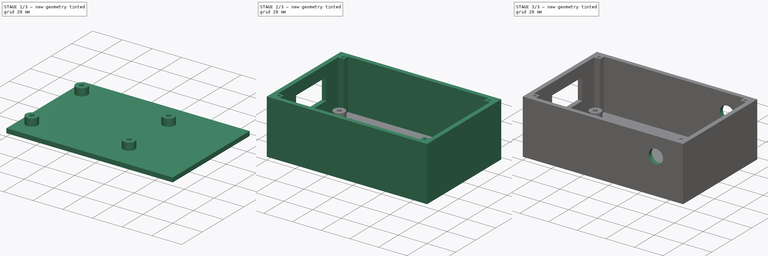
[diagram: build sequence overview — one tinted view per stage of 3, left to right]
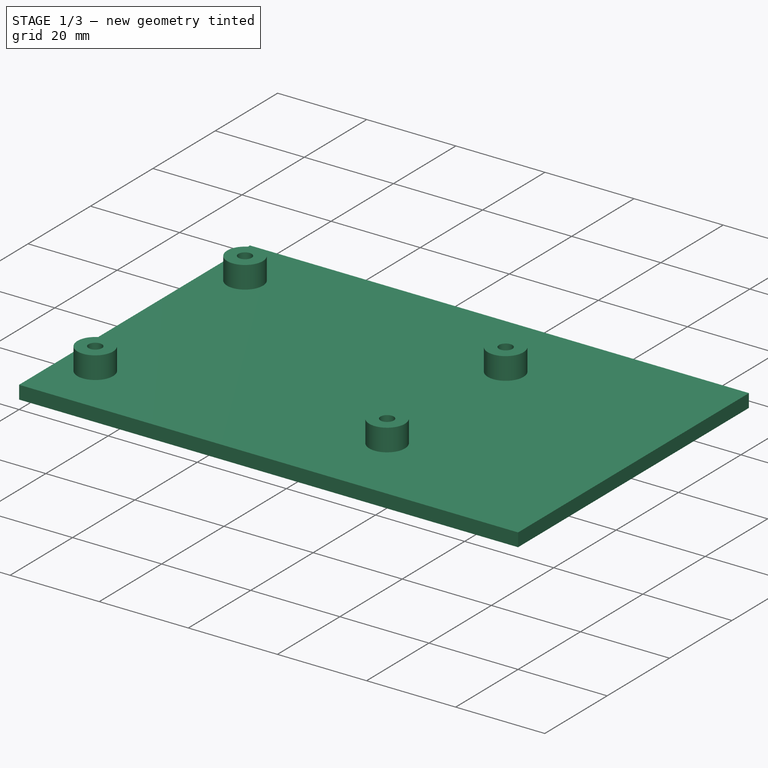
[diagram: stage 1 of 3 — iso view after this stage's code; geometry added in this stage tinted green]
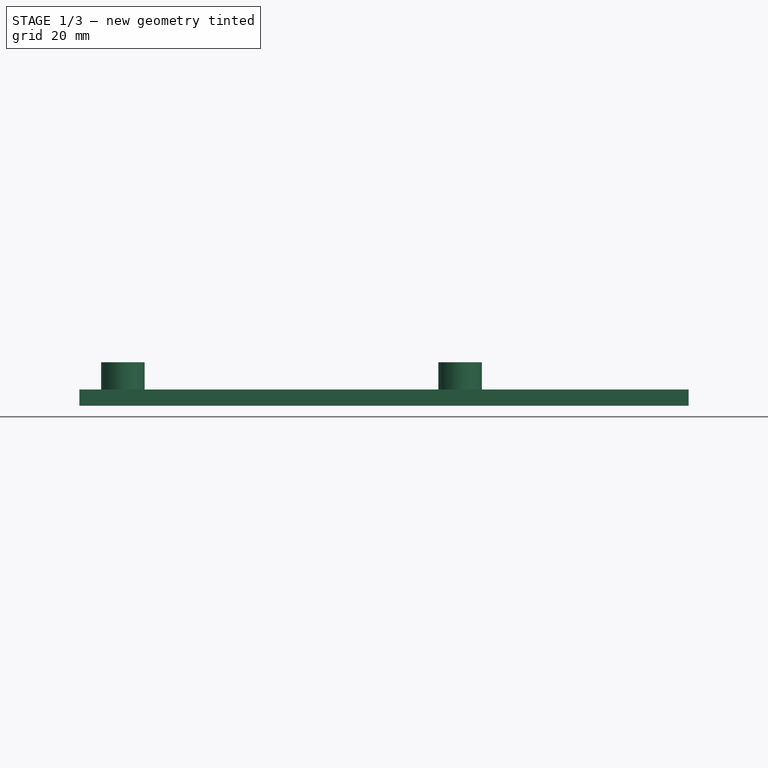
[diagram: stage 1 of 3 — front view after this stage's code; geometry added in this stage tinted green]
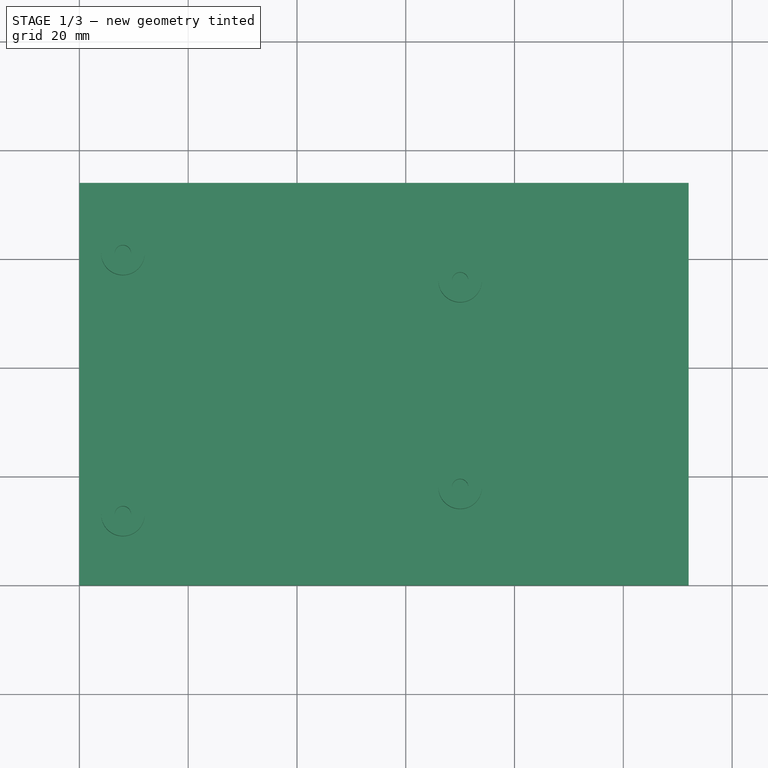
[diagram: stage 1 of 3 — top view after this stage's code; geometry added in this stage tinted green]
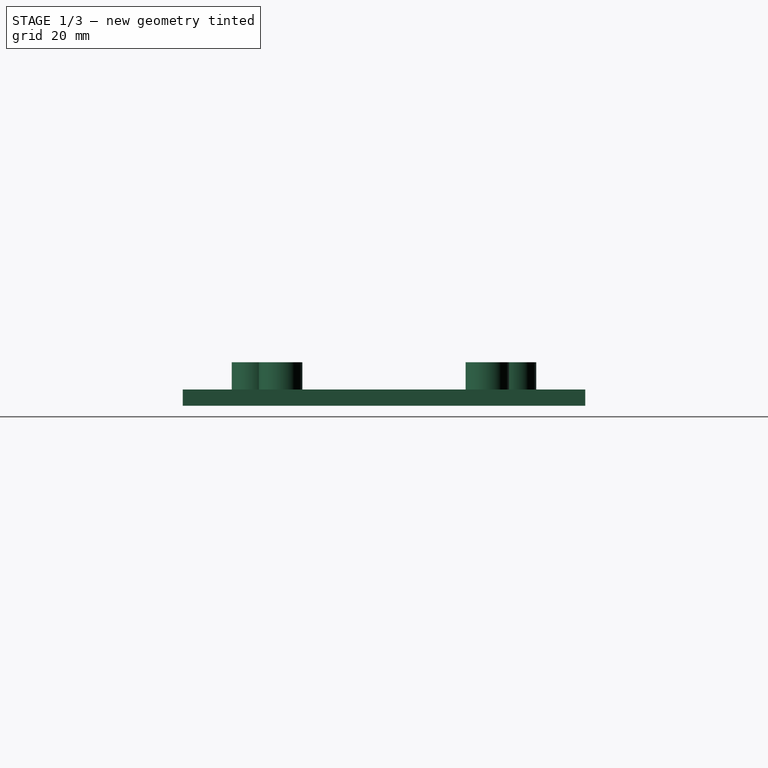
[diagram: stage 1 of 3 — right view after this stage's code; geometry added in this stage tinted green]
FCSTD DOCUMENT  (FreeCAD 0.16R6706 (Git))
Label: Theremin_V1
License: All rights reserved
LicenseURL: http://en.wikipedia.org/wiki/All_rights_reserved
objects: Sketcher::SketchObject×6, PartDesign::Pad×3, PartDesign::Pocket×3
note: 18 computed .brp shape members not serialized (recipe doc carries the construction recipe); baked Part::Feature solids carry a one-line shape summary decoded from their .brp

FEATURE [Sketcher::SketchObject] Sketch  label="Fondo"
  sketch-geometry (4):
    g0: LineSegment StartX=0 StartY=74 StartZ=0 EndX=112 EndY=74 EndZ=0
    g1: LineSegment StartX=112 StartY=74 StartZ=0 EndX=112 EndY=0 EndZ=0
    g2: LineSegment StartX=112 StartY=0 StartZ=0 EndX=0 EndY=0 EndZ=0
    g3: LineSegment StartX=0 StartY=0 StartZ=0 EndX=0 EndY=74 EndZ=0
  constraints (11):
    c: Coincident(g0,g1)
    c: Coincident(g1,g2)
    c: Coincident(g2,g3)
    c: Coincident(g3,g0)
    c: Horizontal(g0)
    c: Horizontal(g2)
    c: Vertical(g1)
    c: Vertical(g3)
    c: Coincident(g-1,g2)
    c: DistanceX(g2,g2) = 112
    c: DistanceY(g1,g1) = 74
FEATURE [PartDesign::Pad] Pad  label="Fondo_F"
  Length = 3
  Length2 = 100
  Sketch = -> Sketch
  Type = 0
FEATURE [Sketcher::SketchObject] Sketch001  label="Fondo_Soportes"
  Placement = pos=(0,0,3) rot=(0,0,1;0rad)
  Support = -> Pad [Face6]
  sketch-geometry (8):
    g0: Circle CenterX=8 CenterY=13 CenterZ=0 NormalX=0 NormalY=0 NormalZ=1 Radius=4
    g1: Circle CenterX=8 CenterY=13 CenterZ=0 NormalX=0 NormalY=0 NormalZ=1 Radius=1.5
    g2: Circle CenterX=8 CenterY=61 CenterZ=0 NormalX=0 NormalY=0 NormalZ=1 Radius=4
    g3: Circle CenterX=8 CenterY=61 CenterZ=0 NormalX=0 NormalY=0 NormalZ=1 Radius=1.5
    g4: Circle CenterX=70 CenterY=18 CenterZ=0 NormalX=0 NormalY=0 NormalZ=1 Radius=4
    g5: Circle CenterX=70 CenterY=18 CenterZ=0 NormalX=0 NormalY=0 NormalZ=1 Radius=1.5
    g6: Circle CenterX=70 CenterY=56 CenterZ=0 NormalX=0 NormalY=0 NormalZ=1 Radius=4
    g7: Circle CenterX=70 CenterY=56 CenterZ=0 NormalX=0 NormalY=0 NormalZ=1 Radius=1.5
  constraints (20):
    c: Radius(g0) = 4
    c: DistanceX(g-1,g0) = 8
    c: DistanceY(g-1,g0) = 13
    c: Radius(g1) = 1.5
    c: Coincident(g1,g0)
    c: Radius(g2) = 4
    c: DistanceY(g0,g2) = 48
    c: Radius(g3) = 1.5
    c: Coincident(g2,g3)
    c: DistanceX(g-1,g2) = 8
    c: DistanceX(g0,g4) = 62
    c: Radius(g4) = 4
    c: DistanceY(g-1,g4) = 18
    c: Radius(g5) = 1.5
    c: Coincident(g5,g4)
    c: Radius(g6) = 4
    c: DistanceY(g4,g6) = 38
    c: DistanceX(g6,g4) = 0
    c: Radius(g7) = 1.5
    c: Coincident(g6,g7)
FEATURE [PartDesign::Pad] Pad001  label="Fondo_Soportes_F"
  Length = 5
  Length2 = 100
  Sketch = -> Sketch001
  Type = 0
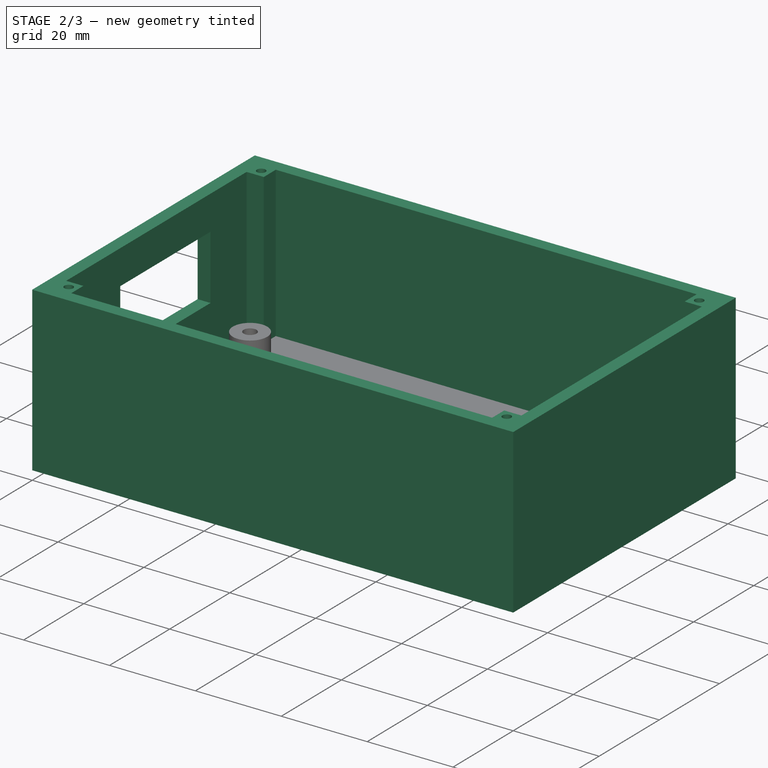
[diagram: stage 2 of 3 — iso view after this stage's code; geometry added in this stage tinted green]
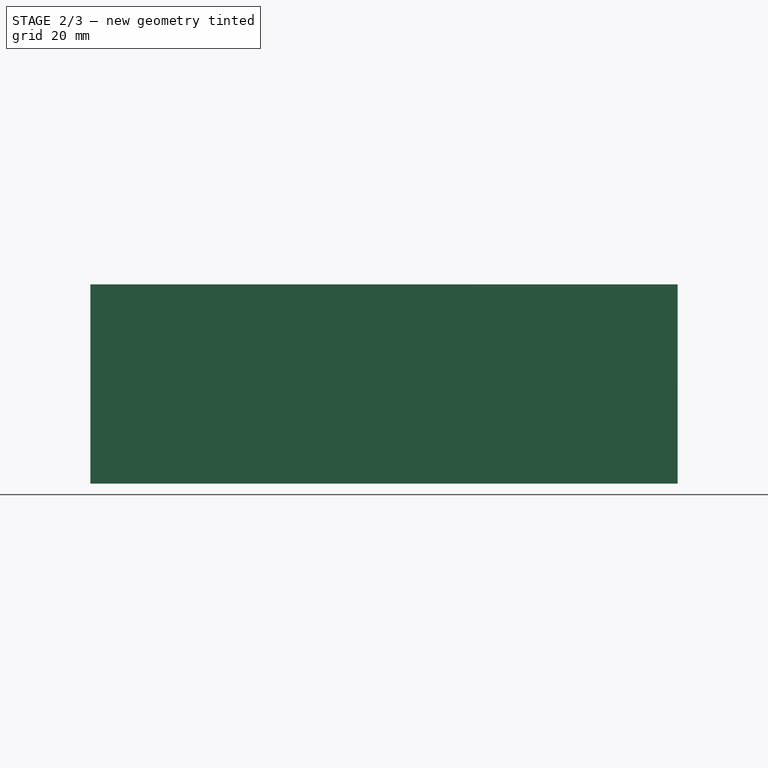
[diagram: stage 2 of 3 — front view after this stage's code; geometry added in this stage tinted green]
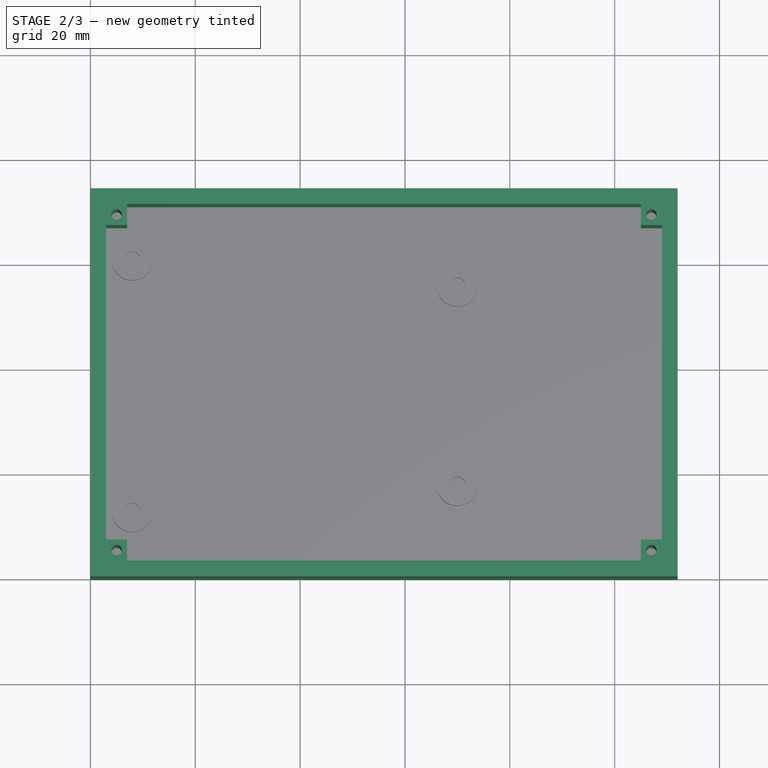
[diagram: stage 2 of 3 — top view after this stage's code; geometry added in this stage tinted green]
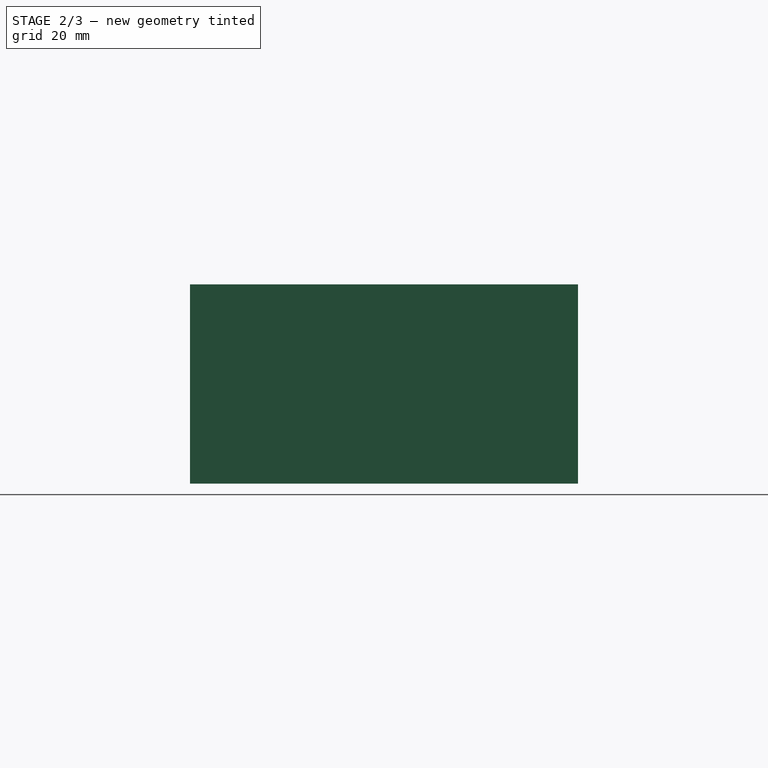
[diagram: stage 2 of 3 — right view after this stage's code; geometry added in this stage tinted green]
FEATURE [Sketcher::SketchObject] Sketch002  label="Lateral_Caja"
  Placement = pos=(0,0,3) rot=(0,0,1;0rad)
  Support = -> Pad001 [Face5]
  sketch-geometry (28):
    g0: LineSegment StartX=0 StartY=74 StartZ=0 EndX=112 EndY=74 EndZ=0
    g1: LineSegment StartX=112 StartY=74 StartZ=0 EndX=112 EndY=0 EndZ=0
    g2: LineSegment StartX=112 StartY=0 StartZ=0 EndX=0 EndY=0 EndZ=0
    g3: LineSegment StartX=0 StartY=0 StartZ=0 EndX=0 EndY=74 EndZ=0
    g4: LineSegment StartX=3 StartY=71 StartZ=0 EndX=109 EndY=71 EndZ=0
    g5: LineSegment StartX=109 StartY=71 StartZ=0 EndX=109 EndY=3 EndZ=0
    g6: LineSegment StartX=109 StartY=3 StartZ=0 EndX=3 EndY=3 EndZ=0
    g7: LineSegment StartX=3 StartY=3 StartZ=0 EndX=3 EndY=71 EndZ=0
    g8: LineSegment StartX=3 StartY=7 StartZ=0 EndX=7 EndY=7 EndZ=0
    g9: LineSegment StartX=7 StartY=7 StartZ=0 EndX=7 EndY=3 EndZ=0
    g10: LineSegment StartX=7 StartY=3 StartZ=0 EndX=3 EndY=3 EndZ=0
    g11: LineSegment StartX=3 StartY=3 StartZ=0 EndX=3 EndY=7 EndZ=0
    g12: Circle CenterX=5 CenterY=5 CenterZ=0 NormalX=0 NormalY=0 NormalZ=1 Radius=1
    g13: LineSegment StartX=3 StartY=71 StartZ=0 EndX=7 EndY=71 EndZ=0
    g14: LineSegment StartX=7 StartY=71 StartZ=0 EndX=7 EndY=67 EndZ=0
    g15: LineSegment StartX=7 StartY=67 StartZ=0 EndX=3 EndY=67 EndZ=0
    g16: LineSegment StartX=3 StartY=67 StartZ=0 EndX=3 EndY=71 EndZ=0
    g17: Circle CenterX=5 CenterY=69 CenterZ=0 NormalX=0 NormalY=0 NormalZ=1 Radius=1
    g18: LineSegment StartX=105 StartY=71 StartZ=0 EndX=109 EndY=71 EndZ=0
    g19: LineSegment StartX=109 StartY=71 StartZ=0 EndX=109 EndY=67 EndZ=0
    g20: LineSegment StartX=109 StartY=67 StartZ=0 EndX=105 EndY=67 EndZ=0
    g21: LineSegment StartX=105 StartY=67 StartZ=0 EndX=105 EndY=71 EndZ=0
    g22: Circle CenterX=107 CenterY=69 CenterZ=0 NormalX=0 NormalY=0 NormalZ=1 Radius=1
    g23: LineSegment StartX=105 StartY=7 StartZ=0 EndX=109 EndY=7 EndZ=0
    g24: LineSegment StartX=109 StartY=7 StartZ=0 EndX=109 EndY=3 EndZ=0
    g25: LineSegment StartX=109 StartY=3 StartZ=0 EndX=105 EndY=3 EndZ=0
    g26: LineSegment StartX=105 StartY=3 StartZ=0 EndX=105 EndY=7 EndZ=0
    g27: Circle CenterX=107 CenterY=5 CenterZ=0 NormalX=0 NormalY=0 NormalZ=1 Radius=1
  constraints (83):
    c: Coincident(g0,g1)
    c: Coincident(g1,g2)
    c: Coincident(g2,g3)
    c: Coincident(g3,g0)
    c: Horizontal(g0)
    c: Horizontal(g2)
    c: Vertical(g1)
    c: Vertical(g3)
    c: DistanceX(g2,g2) = 112
    c: DistanceY(g1,g1) = 74
    c: Coincident(g-1,g2)
    c: Coincident(g4,g5)
    c: Coincident(g5,g6)
    c: Coincident(g6,g7)
    c: Coincident(g7,g4)
    c: Horizontal(g4)
    c: Horizontal(g6)
    c: Vertical(g5)
    c: Vertical(g7)
    c: DistanceX(g6,g6) = 106
    c: DistanceY(g5,g5) = 68
    c: DistanceY(g-1,g6) = 3
    c: DistanceX(g6,g-1) = -3
    c: Coincident(g8,g9)
    c: Coincident(g9,g10)
    c: Coincident(g10,g11)
    c: Coincident(g11,g8)
    c: Horizontal(g8)
    c: Horizontal(g10)
    c: Vertical(g9)
    c: Vertical(g11)
    c: DistanceY(g9,g9) = 4
    c: DistanceX(g10,g10) = 4
    c: DistanceX(g-1,g10) = 3
    c: DistanceY(g-1,g10) = 3
    c: Radius(g12) = 1
    c: DistanceX(g8,g12) = -2
    c: DistanceY(g8,g12) = -2
    c: Coincident(g13,g14)
    c: Coincident(g14,g15)
    c: Coincident(g15,g16)
    c: Coincident(g16,g13)
    c: Horizontal(g13)
    c: Horizontal(g15)
    c: Vertical(g14)
    c: Vertical(g16)
    c: DistanceY(g14,g14) = 4
    c: DistanceX(g15,g15) = 4
    c: DistanceX(g0,g13) = 3
    c: DistanceY(g13,g0) = 3
    c: Radius(g17) = 1
    c: DistanceX(g14,g17) = -2
    c: DistanceY(g17,g14) = -2
    c: Coincident(g18,g19)
    c: Coincident(g19,g20)
    c: Coincident(g20,g21)
    c: Coincident(g21,g18)
    c: Horizontal(g18)
    c: Horizontal(g20)
    c: Vertical(g19)
    c: Vertical(g21)
    c: DistanceX(g18,g18) = 4
    c: DistanceY(g19,g19) = 4
    c: DistanceX(g18,g0) = 3
    c: DistanceY(g18,g0) = 3
    c: Radius(g22) = 1
    c: DistanceX(g22,g20) = -2
    c: DistanceY(g22,g20) = -2
    c: Coincident(g23,g24)
    c: Coincident(g24,g25)
    c: Coincident(g25,g26)
    c: Coincident(g26,g23)
    c: Horizontal(g23)
    c: Horizontal(g25)
    c: Vertical(g24)
    c: Vertical(g26)
    c: DistanceX(g23,g23) = 4
    c: DistanceY(g24,g24) = 4
    c: DistanceY(g1,g24) = 3
    c: DistanceX(g24,g1) = 3
    c: Radius(g27) = 1
    c: DistanceX(g27,g23) = -2
    c: DistanceY(g23,g27) = -2
FEATURE [PartDesign::Pad] Pad002  label="Lateral_Caja_F"
  Length = 35
  Length2 = 100
  Sketch = -> Sketch002
  Type = 0
FEATURE [Sketcher::SketchObject] Sketch003  label="Ventana_Cables"
  Placement = pos=(0,0,0) rot=(0.57735,-0.57735,-0.57735;2.0944rad)
  Support = -> Pad002 [Face43]
  sketch-geometry (4):
    g0: LineSegment StartX=-55 StartY=30 StartZ=0 EndX=-25 EndY=30 EndZ=0
    g1: LineSegment StartX=-25 StartY=30 StartZ=0 EndX=-25 EndY=15 EndZ=0
    g2: LineSegment StartX=-25 StartY=15 StartZ=0 EndX=-55 EndY=15 EndZ=0
    g3: LineSegment StartX=-55 StartY=15 StartZ=0 EndX=-55 EndY=30 EndZ=0
  constraints (12):
    c: Coincident(g0,g1)
    c: Coincident(g1,g2)
    c: Coincident(g2,g3)
    c: Coincident(g3,g0)
    c: Horizontal(g0)
    c: Horizontal(g2)
    c: Vertical(g1)
    c: Vertical(g3)
    c: DistanceX(g1,g-1) = 25
    c: DistanceY(g-1,g1) = 15
    c: DistanceY(g1,g1) = 15
    c: DistanceX(g0,g0) = 30
FEATURE [PartDesign::Pocket] Pocket  label="Ventana_Cables_F"
  Length = 3
  Sketch = -> Sketch003
  Type = 0
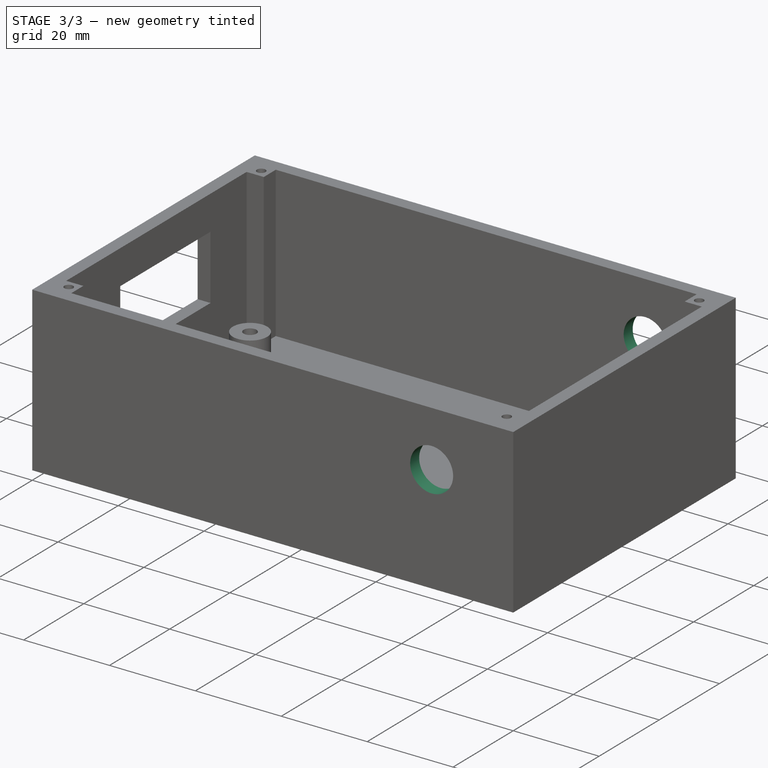
[diagram: stage 3 of 3 — iso view after this stage's code; geometry added in this stage tinted green]
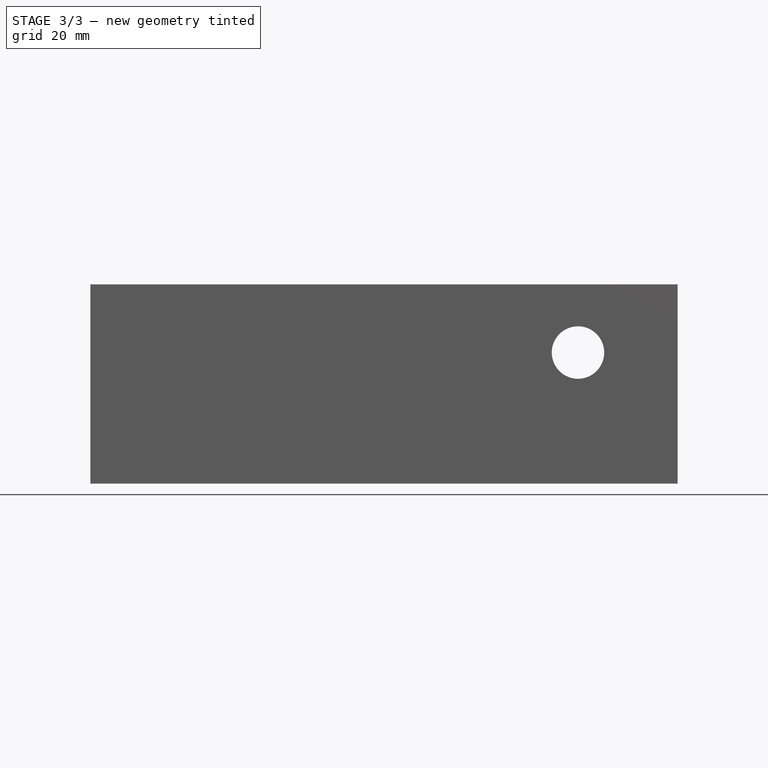
[diagram: stage 3 of 3 — front view after this stage's code; geometry added in this stage tinted green]
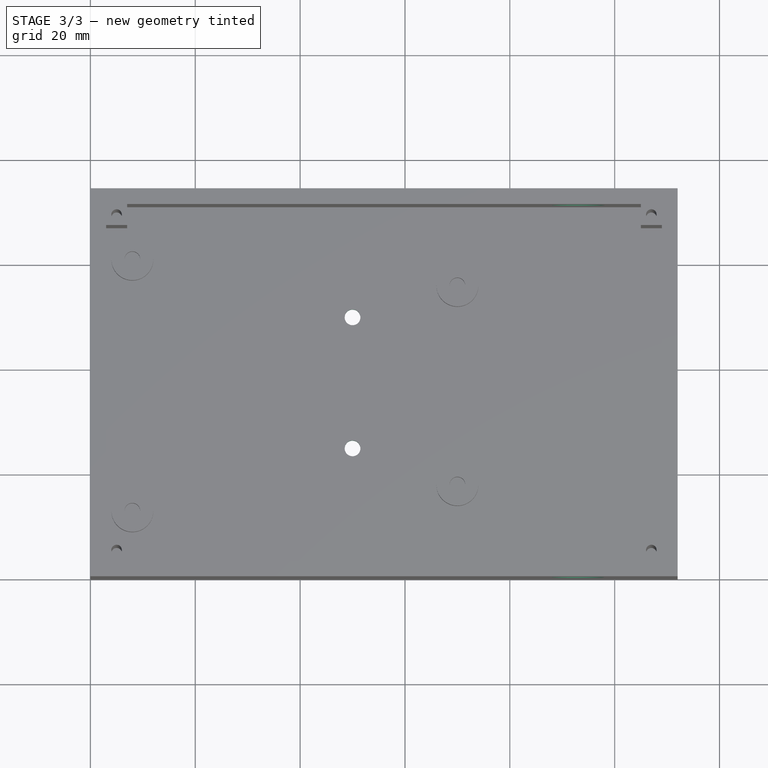
[diagram: stage 3 of 3 — top view after this stage's code; geometry added in this stage tinted green]
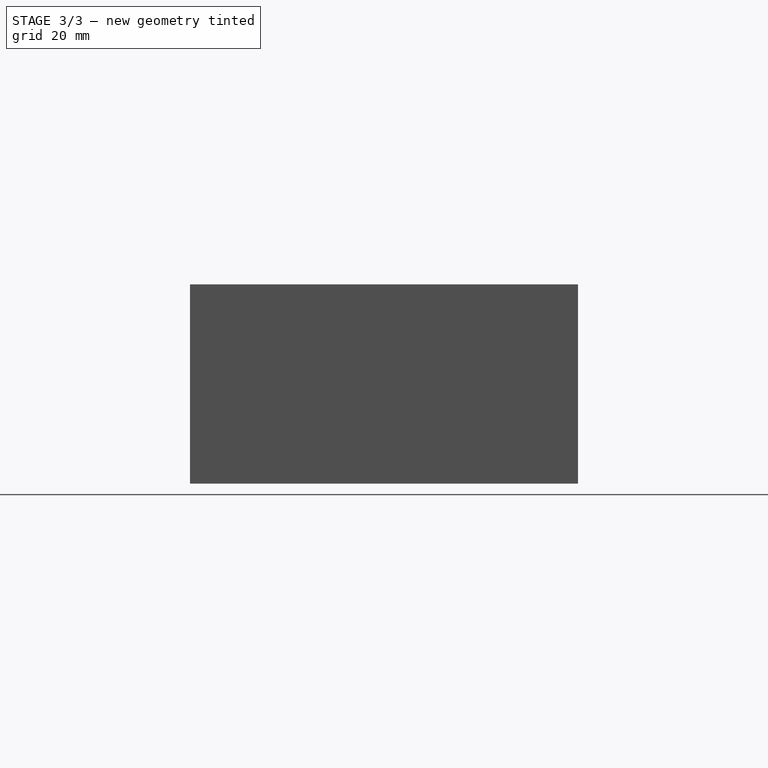
[diagram: stage 3 of 3 — right view after this stage's code; geometry added in this stage tinted green]
FEATURE [Sketcher::SketchObject] Sketch004  label="Salida_Antenas"
  Placement = pos=(0,0,0) rot=(1,0,0;1.5708rad)
  Support = -> Pocket [Face3]
  sketch-geometry (1):
    g0: Circle CenterX=93 CenterY=25 CenterZ=0 NormalX=0 NormalY=0 NormalZ=1 Radius=5
  constraints (3):
    c: Radius(g0) = 5
    c: DistanceX(g-1,g0) = 93
    c: DistanceY(g-1,g0) = 25
FEATURE [PartDesign::Pocket] Pocket001  label="Salida_Antenas_F"
  Length = 74
  Sketch = -> Sketch004
  Type = 0
FEATURE [Sketcher::SketchObject] Sketch005  label="Tornillos_Soporte_Inferior"
  Placement = pos=(0,0,3) rot=(0,0,1;0rad)
  Support = -> Pocket001 [Face29]
  sketch-geometry (2):
    g0: Circle CenterX=50 CenterY=50 CenterZ=0 NormalX=0 NormalY=0 NormalZ=1 Radius=1.5
    g1: Circle CenterX=50 CenterY=25 CenterZ=0 NormalX=0 NormalY=0 NormalZ=1 Radius=1.5
  constraints (6):
    c: Radius(g0) = 1.5
    c: Radius(g1) = 1.5
    c: DistanceX(g1,g0) = 0
    c: DistanceY(g1,g0) = 25
    c: DistanceY(g-1,g1) = 25
    c: DistanceX(g-1,g1) = 50
FEATURE [PartDesign::Pocket] Pocket002  label="Tornillos_Soporte_Inferior_F"
  Length = 3
  Sketch = -> Sketch005
  Type = 0
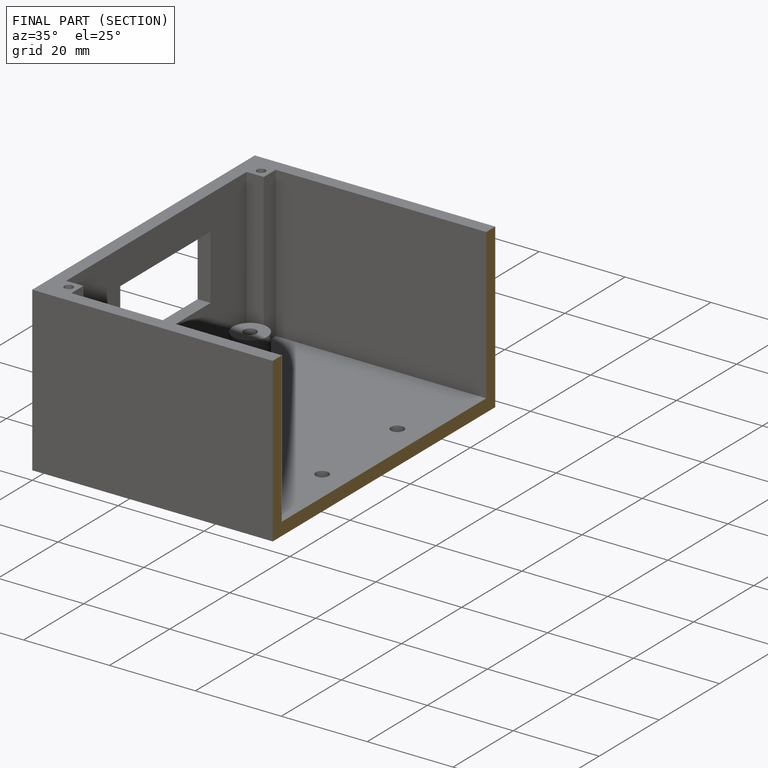
[diagram: finished part — half-section view (interior)]
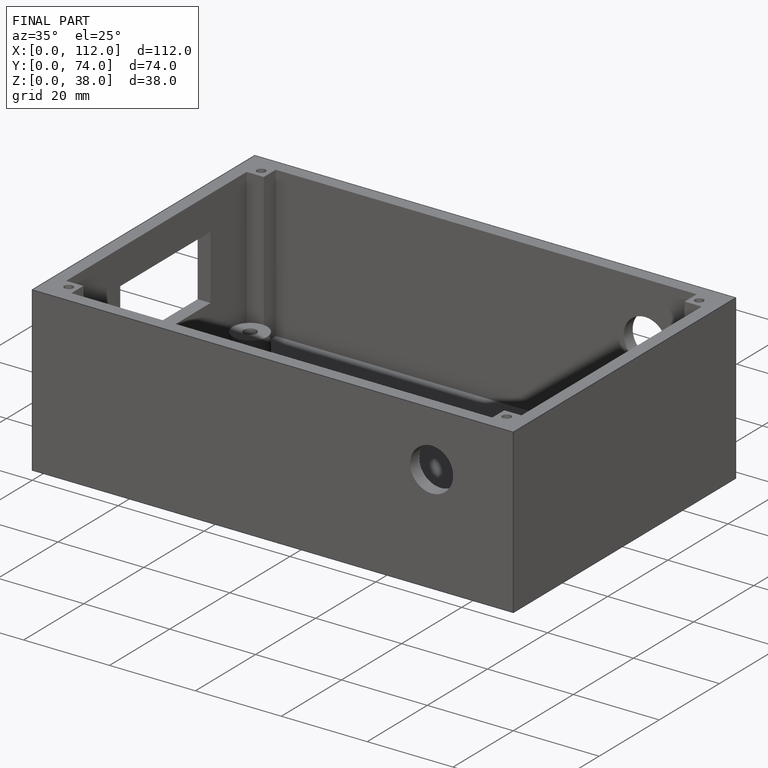
[diagram: finished part — iso view with bounding-box wireframe]
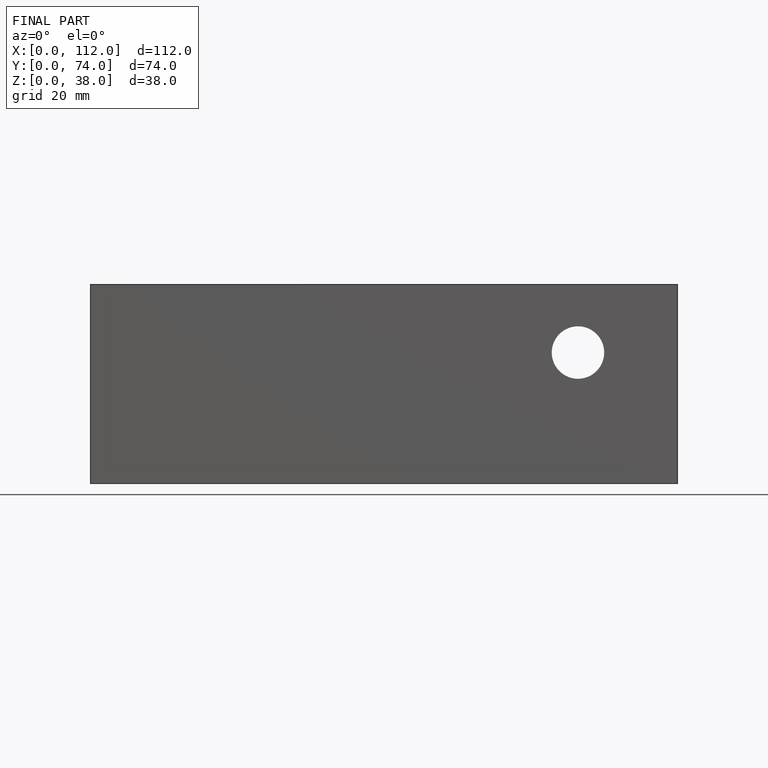
[diagram: finished part — front view with bounding-box wireframe]
